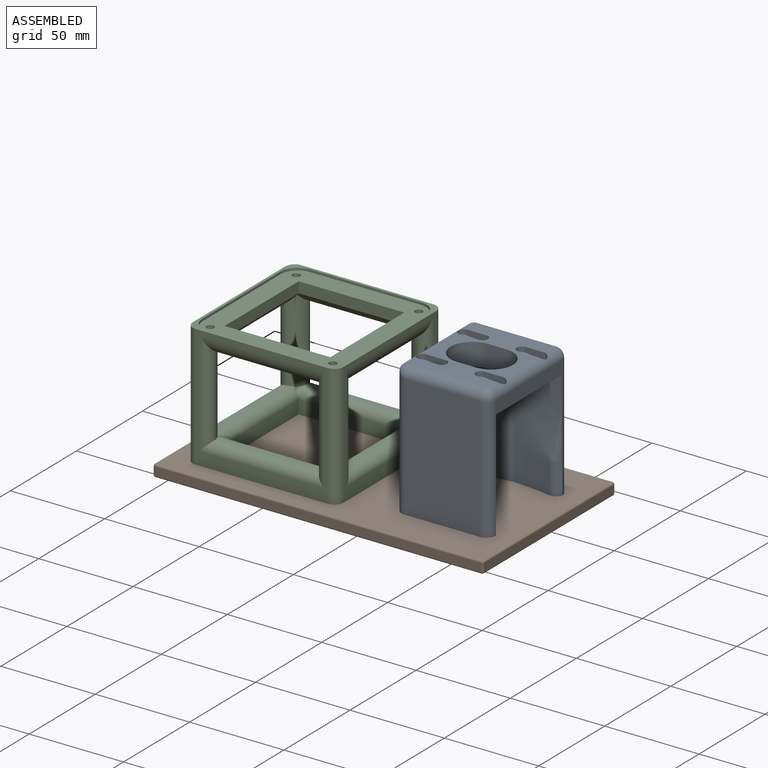
[diagram: assembled view]
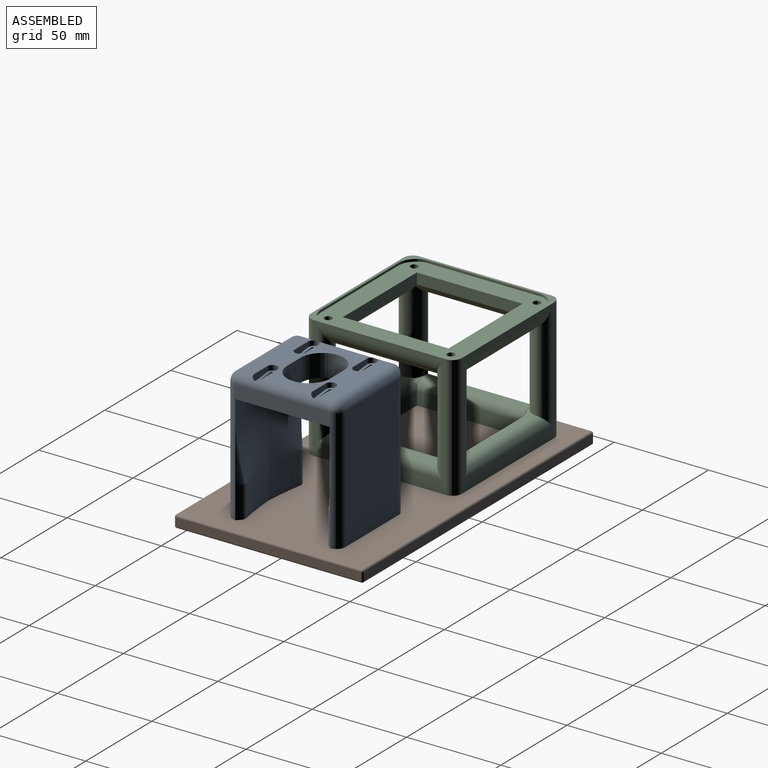
[diagram: assembled view, second angle]
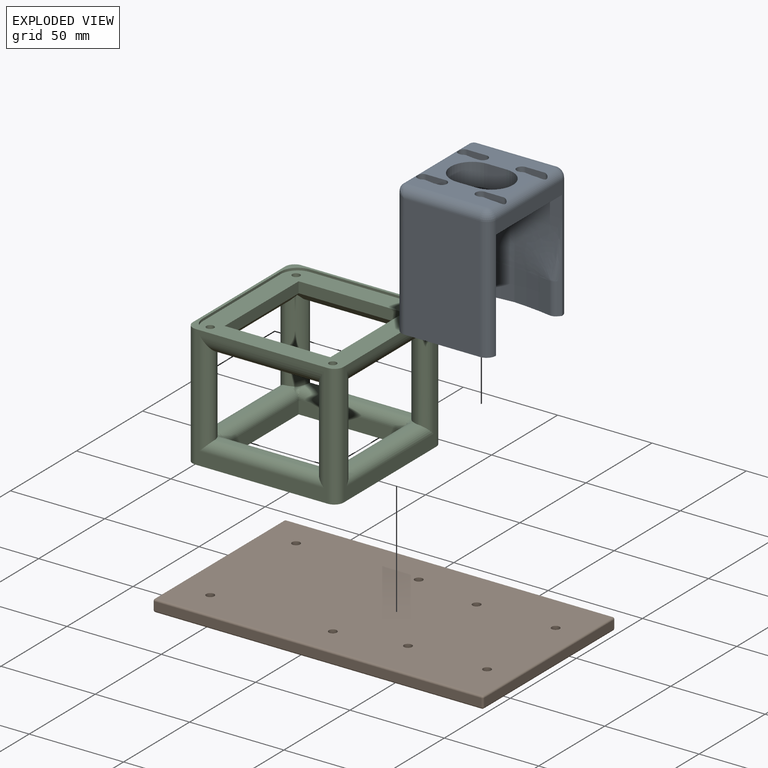
[diagram: exploded view]
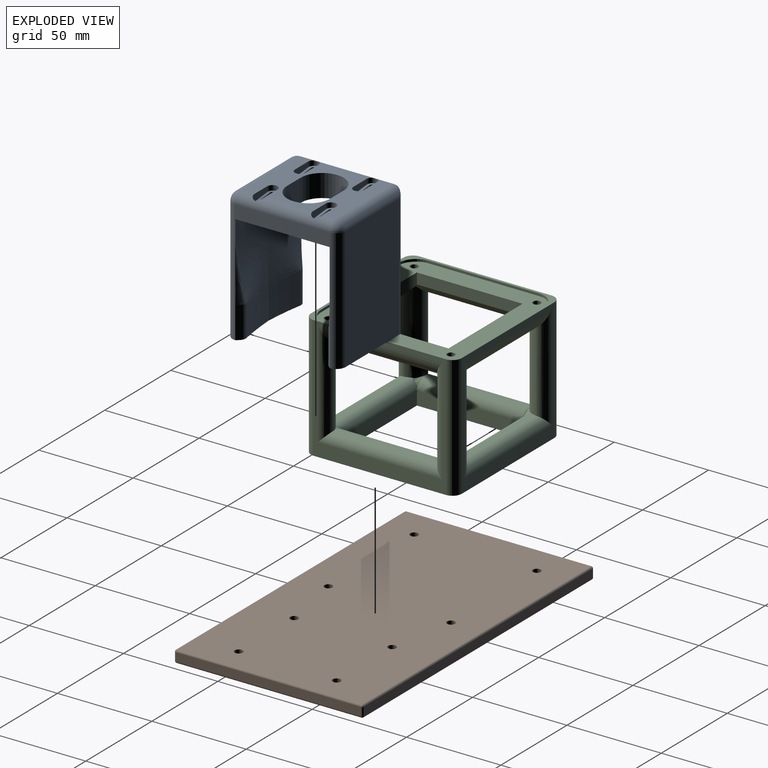
[diagram: exploded view, second angle]
ASSEMBLY  parts=3 mates=2
PART A: 106 faces, bbox 56.5x60.3x70.3 mm
  f0: cylinder r=1.46mm len=8.21mm, axis (0,0,1), area 37.7mm2, adj f1,f3,f27,f102
  f1: plane 10.16x9.19mm, normal (0,-1,0), area 88.4mm2, adj f0,f2,f27,f102
  f2: cylinder r=1.46mm len=9.19mm, axis (0,0,1), area 42.2mm2, adj f1,f3,f27,f102
  f3: plane 10.16x9.19mm, normal (0,1,0), area 88.4mm2, adj f0,f2,f27,f102
  f4: cylinder r=1.46mm len=9.19mm, axis (0,0,1), area 42.2mm2, adj f5,f7,f27,f98
  f5: plane 10.16x9.19mm, normal (0,1,0), area 88.4mm2, adj f4,f6,f27,f98
  f6: cylinder r=1.46mm len=8.21mm, axis (0,0,1), area 37.7mm2, adj f5,f7,f27,f98
  f7: plane 10.16x9.19mm, normal (0,-1,0), area 88.4mm2, adj f4,f6,f27,f98
  f8: cylinder r=1.46mm len=8.21mm, axis (0,0,1), area 37.7mm2, adj f9,f11,f27,f94
  f9: plane 10.16x9.19mm, normal (0,-1,0), area 88.4mm2, adj f8,f10,f27,f94
  f10: cylinder r=1.46mm len=9.19mm, axis (0,0,1), area 42.2mm2, adj f9,f11,f27,f94
  f11: plane 10.16x9.19mm, normal (0,1,0), area 88.4mm2, adj f8,f10,f27,f94
  f12: cylinder r=1.46mm len=9.19mm, axis (0,0,1), area 42.2mm2, adj f13,f15,f27,f90
  f13: plane 10.16x9.19mm, normal (0,1,0), area 88.4mm2, adj f12,f14,f27,f90
  f14: cylinder r=1.46mm len=8.21mm, axis (0,0,1), area 37.7mm2, adj f13,f15,f27,f90
  f15: plane 10.16x9.19mm, normal (0,-1,0), area 88.4mm2, adj f12,f14,f27,f90
  f16: plane 50.01x19.59mm, normal (0,-1,0), area 668.6mm2, adj f27,f50,f53,f77,f80
  f17: plane 50.01x19.59mm, normal (0,1,0), area 668.6mm2, adj f27,f45,f47,f69,f72
  f18: plane 50x42.34mm, normal (0,0,1), area 1186.5mm2, adj f19,f20,f21,f22,f28,f29,f30,f31
  f19: cylinder r=11.43mm len=22.86mm, axis (0,0,1), area 430.9mm2, adj f18,f20,f22,f27
  f20: plane 12x10.16mm, normal (0,-1,0), area 121.9mm2, adj f18,f19,f21,f27
  f21: cylinder r=11.43mm len=22.86mm, axis (0,0,1), area 430.9mm2, adj f18,f20,f22,f27
  f22: plane 12x10.16mm, normal (0,1,0), area 121.9mm2, adj f18,f19,f21,f27
  f23: plane 65x40mm, normal (0,-1,0), area 2600mm2, adj f45,f47,f48,f57
  f24: plane 50x7mm, normal (1,0,0), area 350mm2, adj f27,f47,f50,f51
  f25: plane 65x40mm, normal (0,1,0), area 2600mm2, adj f50,f53,f54,f56
  f26: plane 50x9.34mm, normal (-1,0,0), area 467.2mm2, adj f27,f44,f45,f53
  f27: plane 50x50mm, normal (0,0,-1), area 1711.8mm2, adj f0,f1,f2,f3,f4,f5,f6,f7
  f28: cylinder r=2.79mm len=5.59mm, axis (0,0,1), area 22.3mm2, adj f18,f29,f31,f44,f91,f92
  f29: plane 10.17x3.78mm, normal (0,1,0), area 33.5mm2, adj f18,f28,f30,f90,f92,f93
  f30: cylinder r=2.79mm len=5.59mm, axis (0,0,1), area 22.3mm2, adj f18,f29,f31,f93
  f31: plane 10.17x3.78mm, normal (0,-1,0), area 33.5mm2, adj f18,f28,f30,f90,f91,f93
  f32: plane 10.17x3.78mm, normal (0,1,0), area 33.5mm2, adj f18,f33,f35,f51,f102,f104,f105
  f33: cylinder r=2.79mm len=5.59mm, axis (0,0,1), area 16.2mm2, adj f32,f34,f51,f105
  f34: plane 10.17x3.78mm, normal (0,-1,0), area 33.5mm2, adj f18,f33,f35,f51,f102,f103,f105
  f35: cylinder r=2.79mm len=5.59mm, axis (0,0,1), area 22.3mm2, adj f18,f32,f34,f103,f104
  f36: plane 10.17x3.78mm, normal (0,1,0), area 33.5mm2, adj f18,f37,f39,f98,f100,f101
  f37: cylinder r=2.79mm len=5.59mm, axis (0,0,1), area 22.3mm2, adj f18,f36,f38,f101
  f38: plane 10.17x3.78mm, normal (0,-1,0), area 33.5mm2, adj f18,f37,f39,f98,f99,f101
  f39: cylinder r=2.79mm len=5.59mm, axis (0,0,1), area 22.3mm2, adj f18,f36,f38,f44,f99,f100
  f40: plane 10.17x3.78mm, normal (0,-1,0), area 33.5mm2, adj f18,f41,f43,f51,f94,f95,f97
  f41: cylinder r=2.79mm len=5.59mm, axis (0,0,1), area 22.3mm2, adj f18,f40,f42,f95,f96
  f42: plane 10.17x3.78mm, normal (0,1,0), area 33.5mm2, adj f18,f41,f43,f51,f94,f96,f97
  f43: cylinder r=2.79mm len=5.59mm, axis (0,0,1), area 16.2mm2, adj f40,f42,f51,f97
  f44: cylinder r=2.66mm len=50mm, axis (0,1,0), area 202.2mm2, adj f18,f26,f28,f39,f46,f55
  f45: cylinder r=5mm len=67.34mm, axis (0,0,-1), area 519.7mm2, adj f17,f23,f26,f46,f57,f68,f70
  f46: bspline ~5.25x5mm, area 14.4mm2, adj f44,f45,f48
  f47: cylinder r=5mm len=65mm, axis (0,0,1), area 510.5mm2, adj f17,f23,f24,f49,f57,f66,f67
  f48: cylinder r=5mm len=42.34mm, axis (-1,0,0), area 323.4mm2, adj f18,f23,f46,f49
  f49: sphere r=5mm, area 39.3mm2, adj f47,f48,f51
  f50: cylinder r=5mm len=65mm, axis (0,0,-1), area 510.5mm2, adj f16,f24,f25,f52,f56,f76,f78
  f51: cylinder r=5mm len=50mm, axis (0,-1,0), area 359.5mm2, adj f18,f24,f32,f33,f34,f40,f42,f43
  f52: sphere r=5mm, area 25mm2, adj f50,f51,f54
  f53: cylinder r=5mm len=67.34mm, axis (0,0,1), area 519.7mm2, adj f16,f25,f26,f55,f56,f74,f75
  f54: cylinder r=5mm len=42.34mm, axis (1,0,0), area 323.4mm2, adj f18,f25,f52,f55
  f55: bspline ~5.25x5mm, area 14.4mm2, adj f44,f53,f54
  f56: plane 50x7.68mm, normal (0,0,-1), area 281.6mm2, adj f25,f50,f53,f60,f61,f74,f76,f79
  f57: plane 50x7.68mm, normal (0,0,-1), area 281.6mm2, adj f23,f45,f47,f58,f59,f66,f68,f71
  f58: cylinder r=3.64mm len=16.62mm, axis (0,0,-1), area 61.7mm2, adj f57,f65,f68,f73
  f59: cylinder r=3.64mm len=16.62mm, axis (0,0,-1), area 61.7mm2, adj f57,f64,f66,f71
  f60: cylinder r=3.64mm len=16.62mm, axis (0,0,-1), area 61.7mm2, adj f56,f63,f76,f81
  f61: cylinder r=3.64mm len=16.62mm, axis (0,0,-1), area 61.7mm2, adj f56,f62,f74,f79
  f62: torus R=0.26mm, axis (0,0,1), area 1.2mm2, adj f61,f75,f77
  f63: torus R=0.26mm, axis (0,0,1), area 1.2mm2, adj f60,f78,f80
  f64: torus R=0.26mm, axis (0,0,1), area 1.2mm2, adj f59,f67,f69
  f65: torus R=0.26mm, axis (0,0,1), area 1.2mm2, adj f58,f70,f72
  f66: cylinder r=168.3mm len=16.62mm, axis (0,0,-1), area 32.8mm2, adj f47,f57,f59,f67
  f67: bspline ~33.19x4.42mm, area 67mm2, adj f47,f64,f66,f69
  f68: cylinder r=168.3mm len=16.62mm, axis (0,0,1), area 32.8mm2, adj f45,f57,f58,f70
  f69: bspline ~37.11x33.64mm, area 643.1mm2, adj f17,f64,f67,f71,f72
  f70: bspline ~31.87x4.22mm, area 67mm2, adj f45,f65,f68,f72
  f71: cylinder r=168.3mm len=20.32mm, axis (0,0,-1), area 340.2mm2, adj f57,f59,f69,f73
  f72: bspline ~37.75x31.1mm, area 642mm2, adj f17,f65,f69,f70,f73
  f73: cylinder r=168.3mm len=20.32mm, axis (0,0,-1), area 340.2mm2, adj f57,f58,f71,f72
  f74: cylinder r=168.3mm len=16.62mm, axis (0,0,1), area 32.8mm2, adj f53,f56,f61,f75
  f75: bspline ~33.19x4.42mm, area 67mm2, adj f53,f62,f74,f77
  f76: cylinder r=168.3mm len=16.62mm, axis (0,0,-1), area 32.8mm2, adj f50,f56,f60,f78
  f77: bspline ~37.75x31.1mm, area 642mm2, adj f16,f62,f75,f79,f80
  f78: bspline ~31.87x4.22mm, area 67mm2, adj f50,f63,f76,f80
  f79: cylinder r=168.3mm len=20.32mm, axis (0,0,-1), area 340.2mm2, adj f56,f61,f77,f81
  f80: bspline ~37.11x33.64mm, area 643.1mm2, adj f16,f63,f77,f78,f81
  f81: cylinder r=168.3mm len=20.32mm, axis (0,0,-1), area 340.2mm2, adj f56,f60,f79,f80
  f82: cylinder r=2.02mm len=15.3mm, axis (0,0,-1), area 194.2mm2, adj f57,f83
  f83: plane 4.04x4.04mm, normal (0,0,-1), area 12.8mm2, adj f82
  f84: cylinder r=2.02mm len=15.3mm, axis (0,0,-1), area 194.2mm2, adj f57,f85
  f85: plane 4.04x4.04mm, normal (0,0,-1), area 12.8mm2, adj f84
  f86: cylinder r=2.02mm len=15.3mm, axis (0,0,-1), area 194.2mm2, adj f56,f87
  f87: plane 4.04x4.04mm, normal (0,0,-1), area 12.8mm2, adj f86
  f88: cylinder r=2.02mm len=15.3mm, axis (0,0,-1), area 194.2mm2, adj f56,f89
  f89: plane 4.04x4.04mm, normal (0,0,-1), area 12.8mm2, adj f88
  f90: plane 15.96x5.87mm, normal (0.1,0,1), area 44.8mm2, adj f12,f13,f14,f15,f29,f31,f91,f92
  f91: torus R=2.79mm, axis (0,-1,0), area 0.4mm2, adj f28,f31,f90
  f92: torus R=2.79mm, axis (0,-1,0), area 0.4mm2, adj f28,f29,f90
  f93: torus R=12.95mm, axis (0,-1,0), area 12.4mm2, adj f29,f30,f31,f90
  f94: plane 15.96x5.87mm, normal (0.1,0,1), area 44.8mm2, adj f8,f9,f10,f11,f40,f42,f95,f96
  f95: torus R=2.79mm, axis (0,-1,0), area 0.4mm2, adj f40,f41,f94
  f96: torus R=2.79mm, axis (0,-1,0), area 0.4mm2, adj f41,f42,f94
  f97: torus R=12.95mm, axis (0,-1,0), area 12.4mm2, adj f40,f42,f43,f94
  f98: plane 15.96x5.87mm, normal (0.1,0,1), area 44.8mm2, adj f4,f5,f6,f7,f36,f38,f99,f100
  f99: torus R=2.79mm, axis (0,-1,0), area 0.4mm2, adj f38,f39,f98
  f100: torus R=2.79mm, axis (0,-1,0), area 0.4mm2, adj f36,f39,f98
  f101: torus R=12.95mm, axis (0,-1,0), area 12.4mm2, adj f36,f37,f38,f98
  f102: plane 15.96x5.87mm, normal (0.1,0,1), area 44.8mm2, adj f0,f1,f2,f3,f32,f34,f103,f104
  f103: torus R=2.79mm, axis (0,-1,0), area 0.4mm2, adj f34,f35,f102
  f104: torus R=2.79mm, axis (0,-1,0), area 0.4mm2, adj f32,f35,f102
  f105: torus R=12.95mm, axis (0,-1,0), area 12.4mm2, adj f32,f33,f34,f102
PART B: 58 faces, bbox 175x100x6.4 mm
  f0: cylinder r=2.12mm len=4.25mm, axis (0,0,1), area 34.7mm2, adj f12,f28
  f1: cylinder r=2.12mm len=4.25mm, axis (0,0,1), area 34.7mm2, adj f12,f26
  f2: cylinder r=2.12mm len=4.25mm, axis (0,0,1), area 34.7mm2, adj f12,f24
  f3: cylinder r=2.12mm len=4.25mm, axis (0,0,1), area 34.7mm2, adj f12,f22
  f4: cylinder r=2.12mm len=4.25mm, axis (0,0,1), area 34.7mm2, adj f12,f20
  f5: cylinder r=2.12mm len=4.25mm, axis (0,0,1), area 34.7mm2, adj f12,f18
  f6: cylinder r=2.12mm len=4.25mm, axis (0,0,1), area 34.7mm2, adj f12,f16
  f7: cylinder r=2.12mm len=4.25mm, axis (0,0,1), area 34.7mm2, adj f12,f14
  f8: plane 98x4.35mm, normal (1,0,0), area 426.3mm2, adj f46,f51,f54,f57
  f9: plane 173x4.35mm, normal (0,1,0), area 752.5mm2, adj f43,f52,f53,f57
  f10: plane 98x4.35mm, normal (-1,0,0), area 426.3mm2, adj f38,f42,f43,f44
  f11: plane 173x4.35mm, normal (0,-1,0), area 752.5mm2, adj f38,f41,f45,f46
  f12: plane 173x98mm, normal (0,0,1), area 16840.5mm2, adj f0,f1,f2,f3,f4,f5,f6,f7
  f13: plane 173x98mm, normal (0,0,-1), area 15791.9mm2, adj f30,f31,f32,f33,f34,f35,f36,f37
  f14: plane 11.6x11.6mm, normal (0,0,-1), area 91.5mm2, adj f7,f15
  f15: cylinder r=5.8mm len=11.6mm, axis (0,0,-1), area 100.2mm2, adj f14,f33
  f16: plane 11.6x11.6mm, normal (0,0,-1), area 91.5mm2, adj f6,f17
  f17: cylinder r=5.8mm len=11.6mm, axis (0,0,-1), area 100.2mm2, adj f16,f34
  f18: plane 11.6x11.6mm, normal (0,0,-1), area 91.5mm2, adj f5,f19
  f19: cylinder r=5.8mm len=11.6mm, axis (0,0,-1), area 100.2mm2, adj f18,f35
  f20: plane 11.6x11.6mm, normal (0,0,-1), area 91.5mm2, adj f4,f21
  f21: cylinder r=5.8mm len=11.6mm, axis (0,0,-1), area 100.2mm2, adj f20,f36
  f22: plane 11.6x11.6mm, normal (0,0,-1), area 91.5mm2, adj f3,f23
  f23: cylinder r=5.8mm len=11.6mm, axis (0,0,-1), area 100.2mm2, adj f22,f32
  f24: plane 11.6x11.6mm, normal (0,0,-1), area 91.5mm2, adj f2,f25
  f25: cylinder r=5.8mm len=11.6mm, axis (0,0,-1), area 100.2mm2, adj f24,f31
  f26: plane 11.6x11.6mm, normal (0,0,-1), area 91.5mm2, adj f1,f27
  f27: cylinder r=5.8mm len=11.6mm, axis (0,0,-1), area 100.2mm2, adj f26,f30
  f28: plane 11.6x11.6mm, normal (0,0,-1), area 91.5mm2, adj f0,f29
  f29: cylinder r=5.8mm len=11.6mm, axis (0,0,-1), area 100.2mm2, adj f28,f37
  f30: torus R=6.8mm, axis (0,0,1), area 60.8mm2, adj f13,f27
  f31: torus R=6.8mm, axis (0,0,1), area 60.8mm2, adj f13,f25
  f32: torus R=6.8mm, axis (0,0,1), area 60.8mm2, adj f13,f23
  f33: torus R=6.8mm, axis (0,0,1), area 60.8mm2, adj f13,f15
  f34: torus R=6.8mm, axis (0,0,1), area 60.8mm2, adj f13,f17
  f35: torus R=6.8mm, axis (0,0,1), area 60.8mm2, adj f13,f19
  f36: torus R=6.8mm, axis (0,0,1), area 60.8mm2, adj f13,f21
  f37: torus R=6.8mm, axis (0,0,1), area 60.8mm2, adj f13,f29
  f38: cylinder r=1mm len=4.35mm, axis (0,0,1), area 6.8mm2, adj f10,f11,f39,f40
  f39: sphere r=1mm, area 1.6mm2, adj f38,f41,f42
  f40: sphere r=1mm, area 1.6mm2, adj f38,f44,f45
  f41: cylinder r=1mm len=173mm, axis (-1,0,0), area 271.7mm2, adj f11,f12,f39,f47
  f42: cylinder r=1mm len=98mm, axis (0,1,0), area 153.9mm2, adj f10,f12,f39,f48
  f43: cylinder r=1mm len=4.35mm, axis (0,0,-1), area 6.8mm2, adj f9,f10,f48,f49
  f44: cylinder r=1mm len=98mm, axis (0,-1,0), area 153.9mm2, adj f10,f13,f40,f49
  f45: cylinder r=1mm len=173mm, axis (1,0,0), area 271.7mm2, adj f11,f13,f40,f50
  f46: cylinder r=1mm len=4.35mm, axis (0,0,-1), area 6.8mm2, adj f8,f11,f47,f50
  f47: sphere r=1mm, area 1.6mm2, adj f41,f46,f51
  f48: sphere r=1mm, area 1.6mm2, adj f42,f43,f52
  f49: sphere r=1mm, area 1.6mm2, adj f43,f44,f53
  f50: sphere r=1mm, area 1.6mm2, adj f45,f46,f54
  f51: cylinder r=1mm len=98mm, axis (0,-1,0), area 153.9mm2, adj f8,f12,f47,f55
  f52: cylinder r=1mm len=173mm, axis (1,0,0), area 271.7mm2, adj f9,f12,f48,f55
  f53: cylinder r=1mm len=173mm, axis (-1,0,0), area 271.7mm2, adj f9,f13,f49,f56
  f54: cylinder r=1mm len=98mm, axis (0,1,0), area 153.9mm2, adj f8,f13,f50,f56
  f55: sphere r=1mm, area 1.6mm2, adj f51,f52,f57
  f56: sphere r=1mm, area 1.6mm2, adj f53,f54,f57
  f57: cylinder r=1mm len=4.35mm, axis (0,0,1), area 6.8mm2, adj f8,f9,f55,f56
PART C: 83 faces, bbox 80.2x80.2x65.2 mm
  f0: plane 2.09x0.55mm, normal (0,0,1), area 0.4mm2, adj f38,f57,f74
  f1: plane 57.18x2.14mm, normal (0,0,1), area 118.7mm2, adj f46,f57,f59,f72,f73,f74
  f2: plane 2.09x0.55mm, normal (0,0,1), area 0.4mm2, adj f36,f60,f69
  f3: plane 57.18x2.14mm, normal (0,0,1), area 118.7mm2, adj f49,f58,f60,f69,f70,f71
  f4: plane 56x5.74mm, normal (1,0,0), area 321.3mm2, adj f6,f7,f21,f68
  f5: plane 56x5.74mm, normal (-1,0,0), area 321.3mm2, adj f6,f7,f21,f65
  f6: plane 56x5.74mm, normal (0,1,0), area 321.3mm2, adj f4,f5,f21,f66
  f7: plane 56x5.74mm, normal (0,-1,0), area 321.3mm2, adj f4,f5,f21,f67
  f8: plane 70x65mm, normal (0,-1,0), area 876.6mm2, adj f12,f32,f48,f49,f50,f51,f54,f64
  f9: plane 70x65mm, normal (1,0,0), area 876.6mm2, adj f12,f32,f39,f40,f41,f51,f52,f61
  f10: plane 70x65mm, normal (0,1,0), area 876.6mm2, adj f12,f32,f45,f46,f47,f52,f53,f63
  f11: plane 70x65mm, normal (-1,0,0), area 876.6mm2, adj f12,f32,f42,f43,f44,f53,f54,f62
  f12: plane 80x80mm, normal (0,0,1), area 483.2mm2, adj f8,f9,f10,f11,f13,f14,f15,f16
  f13: plane 58.9x1.26mm, normal (0,-1,0), area 74.4mm2, adj f12,f14,f20,f21
  f14: cylinder r=9.17mm len=9.17mm, axis (0,0,1), area 18.2mm2, adj f12,f13,f15,f21
  f15: plane 58.9x1.26mm, normal (1,0,0), area 74.4mm2, adj f12,f14,f16,f21
  f16: cylinder r=9.17mm len=9.17mm, axis (0,0,1), area 18.2mm2, adj f12,f15,f17,f21
  f17: plane 58.9x1.26mm, normal (0,1,0), area 74.4mm2, adj f12,f16,f18,f21
  f18: cylinder r=9.17mm len=9.17mm, axis (0,0,1), area 18.2mm2, adj f12,f17,f19,f21
  f19: plane 58.9x1.26mm, normal (-1,0,0), area 74.4mm2, adj f12,f18,f20,f21
  f20: cylinder r=9.17mm len=9.17mm, axis (0,0,1), area 18.2mm2, adj f12,f13,f19,f21
  f21: plane 77.25x77.25mm, normal (0,0,1), area 2708mm2, adj f4,f5,f6,f7,f13,f14,f15,f16
  f22: plane 56x7mm, normal (1,0,0), area 392mm2, adj f32,f35,f37,f55
  f23: plane 56x7mm, normal (-1,0,0), area 392mm2, adj f32,f35,f37,f56
  f24: cylinder r=2.02mm len=15.3mm, axis (0,0,1), area 194.2mm2, adj f21,f25
  f25: plane 4.04x4.04mm, normal (0,0,1), area 12.8mm2, adj f24
  f26: cylinder r=2.02mm len=15.3mm, axis (0,0,1), area 194.2mm2, adj f21,f27
  f27: plane 4.04x4.04mm, normal (0,0,1), area 12.8mm2, adj f26
  f28: cylinder r=2.02mm len=15.3mm, axis (0,0,1), area 194.2mm2, adj f21,f29
  f29: plane 4.04x4.04mm, normal (0,0,1), area 12.8mm2, adj f28
  f30: cylinder r=2.02mm len=15.3mm, axis (0,0,1), area 194.2mm2, adj f21,f31
  f31: plane 4.04x4.04mm, normal (0,0,1), area 12.8mm2, adj f30
  f32: plane 80x80mm, normal (0,0,-1), area 3191.3mm2, adj f8,f9,f10,f11,f22,f23,f35,f37
  f33: plane 2.7x0.8mm, normal (0,0,1), area 0.5mm2, adj f36,f40,f59,f72
  f34: plane 2.7x0.8mm, normal (0,0,1), area 0.5mm2, adj f38,f43,f58,f71
  f35: plane 56x7.1mm, normal (0,1,0), area 397.6mm2, adj f22,f23,f32,f55,f56,f70
  f36: plane 56x2mm, normal (0,0,1), area 112mm2, adj f2,f33,f41,f56
  f37: plane 56x7.1mm, normal (0,-1,0), area 397.6mm2, adj f22,f23,f32,f55,f56,f73
  f38: plane 56x2mm, normal (0,0,1), area 112mm2, adj f0,f34,f44,f55
  f39: cylinder r=5mm len=55.66mm, axis (0,0,-1), area 384.3mm2, adj f9,f41,f60,f61
  f40: cylinder r=5mm len=55.66mm, axis (0,0,1), area 357.3mm2, adj f9,f33,f41,f59,f61
  f41: cylinder r=5mm len=66mm, axis (0,1,0), area 479.1mm2, adj f9,f36,f39,f40
  f42: cylinder r=5mm len=55.66mm, axis (0,0,1), area 384.3mm2, adj f11,f44,f57,f62
  f43: cylinder r=5mm len=55.66mm, axis (0,0,-1), area 357.3mm2, adj f11,f34,f44,f58,f62
  f44: cylinder r=5mm len=66mm, axis (0,1,0), area 479.1mm2, adj f11,f38,f42,f43
  f45: cylinder r=5mm len=55.66mm, axis (0,0,1), area 365.5mm2, adj f10,f46,f57,f63
  f46: cylinder r=5mm len=66mm, axis (-1,0,0), area 468.4mm2, adj f1,f10,f45,f47,f57
  f47: cylinder r=5mm len=55.66mm, axis (0,0,-1), area 384.3mm2, adj f10,f46,f59,f63
  f48: cylinder r=5mm len=55.66mm, axis (0,0,1), area 384.3mm2, adj f8,f49,f58,f64
  f49: cylinder r=5mm len=66mm, axis (-1,0,0), area 468.4mm2, adj f3,f8,f48,f50,f60
  f50: cylinder r=5mm len=55.66mm, axis (0,0,-1), area 365.5mm2, adj f8,f49,f60,f64
  f51: cylinder r=5mm len=65mm, axis (0,0,1), area 510.5mm2, adj f8,f9,f12,f32
  f52: cylinder r=5mm len=65mm, axis (0,0,-1), area 510.5mm2, adj f9,f10,f12,f32
  f53: cylinder r=5mm len=65mm, axis (0,0,1), area 510.5mm2, adj f10,f11,f12,f32
  f54: cylinder r=5mm len=65mm, axis (0,0,-1), area 510.5mm2, adj f8,f11,f12,f32
  f55: cylinder r=5mm len=56mm, axis (0,-1,0), area 439.8mm2, adj f22,f35,f37,f38,f71,f74
  f56: cylinder r=5mm len=56mm, axis (0,1,0), area 439.8mm2, adj f23,f35,f36,f37,f69,f72
  f57: cylinder r=7.97mm len=43.98mm, axis (0,0,-1), area 466.4mm2, adj f0,f1,f42,f45,f46,f62,f63,f67
  f58: cylinder r=7.97mm len=43.7mm, axis (0,0,1), area 465.5mm2, adj f3,f34,f43,f48,f62,f64,f66,f68
  f59: cylinder r=7.97mm len=43.7mm, axis (0,0,-1), area 465.5mm2, adj f1,f33,f40,f47,f61,f63,f65,f67
  f60: cylinder r=7.97mm len=43.98mm, axis (0,0,1), area 466.4mm2, adj f2,f3,f39,f49,f50,f61,f64,f65
  f61: cylinder r=9.66mm len=66mm, axis (0,-1,0), area 768mm2, adj f9,f39,f40,f59,f60,f65
  f62: cylinder r=9.66mm len=66mm, axis (0,-1,0), area 768mm2, adj f11,f42,f43,f57,f58,f68
  f63: cylinder r=9.66mm len=66mm, axis (1,0,0), area 768mm2, adj f10,f45,f47,f57,f59,f67
  f64: cylinder r=9.66mm len=66mm, axis (1,0,0), area 768mm2, adj f8,f48,f50,f58,f60,f66
  f65: plane 60.76x4.86mm, normal (-0.71,0,-0.71), area 389.5mm2, adj f5,f59,f60,f61,f66,f67
  f66: plane 60.76x4.86mm, normal (0,0.71,-0.71), area 389.5mm2, adj f6,f58,f60,f64,f65,f68
  f67: plane 60.76x4.86mm, normal (0,-0.71,-0.71), area 389.5mm2, adj f7,f57,f59,f63,f65,f68
  f68: plane 60.76x4.86mm, normal (0.71,0,-0.71), area 389.5mm2, adj f4,f57,f58,f62,f66,f67
  f69: bspline ~5.26x4.91mm, area 15mm2, adj f2,f3,f56,f60,f70
  f70: cylinder r=4.9mm len=56mm, axis (-1,0,0), area 431mm2, adj f3,f35,f69,f71
  f71: bspline ~5.53x4.92mm, area 15mm2, adj f3,f34,f55,f58,f70
  f72: bspline ~5.53x4.92mm, area 15mm2, adj f1,f33,f56,f59,f73
  f73: cylinder r=4.9mm len=56mm, axis (1,0,0), area 431mm2, adj f1,f37,f72,f74
  f74: bspline ~5.26x4.91mm, area 15mm2, adj f0,f1,f55,f57,f73
  f75: cylinder r=2.02mm len=23.8mm, axis (0,0,-1), area 302.1mm2, adj f32,f76
  f76: plane 4.04x4.04mm, normal (0,0,-1), area 12.8mm2, adj f75
  f77: cylinder r=2.02mm len=23.8mm, axis (0,0,-1), area 302.1mm2, adj f32,f78
  f78: plane 4.04x4.04mm, normal (0,0,-1), area 12.8mm2, adj f77
  f79: cylinder r=2.02mm len=23.8mm, axis (0,0,-1), area 302.1mm2, adj f32,f80
  f80: plane 4.04x4.04mm, normal (0,0,-1), area 12.8mm2, adj f79
  f81: cylinder r=2.02mm len=23.8mm, axis (0,0,-1), area 302.1mm2, adj f32,f82
  f82: plane 4.04x4.04mm, normal (0,0,-1), area 12.8mm2, adj f81
PLACE A t=(-13.46,27.63,16.2)mm
PLACE B t=(-36.31,27.63,9.85)mm
PLACE C t=(-17.16,27.63,16.2)mm
MATE fastened B.f6 <-> C.f30  axis (0,0,1) through (-105.66,-4.87,16.2)mm
MATE fastened A.f59 <-> B.f2  axis (0,0,-1) through (36.5,1.67,16.2)mm
